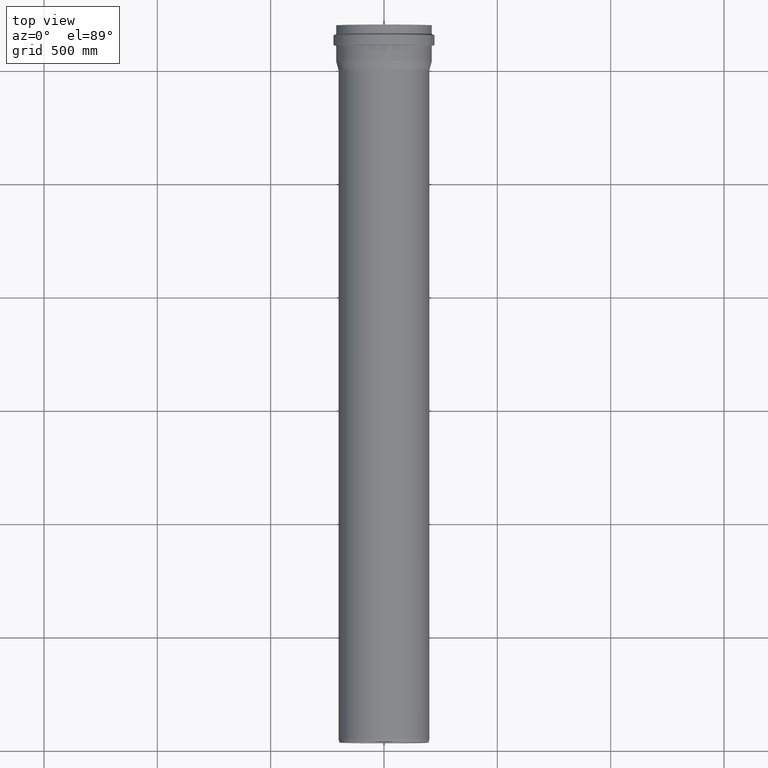
[diagram: clean part render]
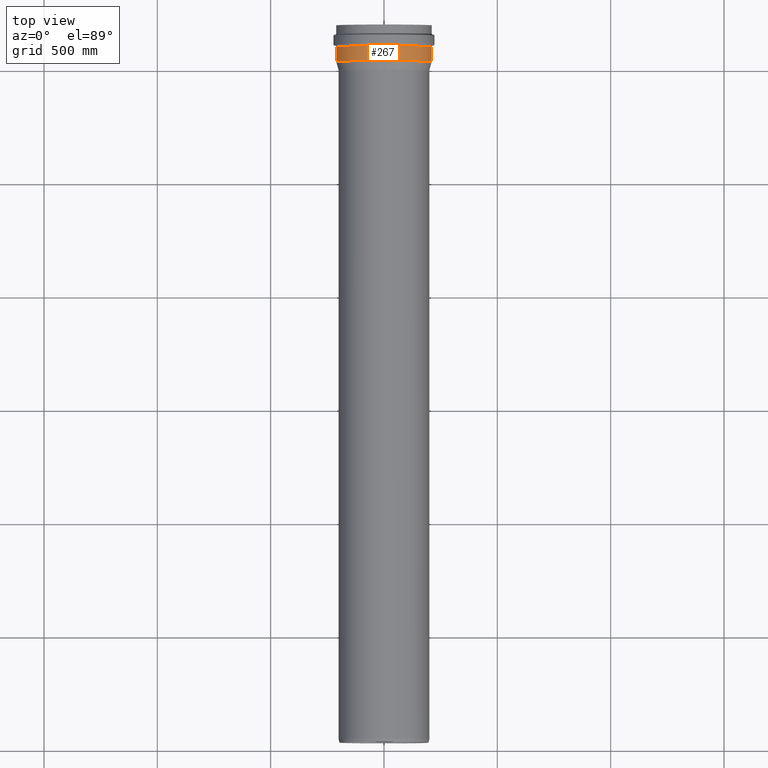
[diagram: same view with one face highlighted and labeled with its STEP entity id]
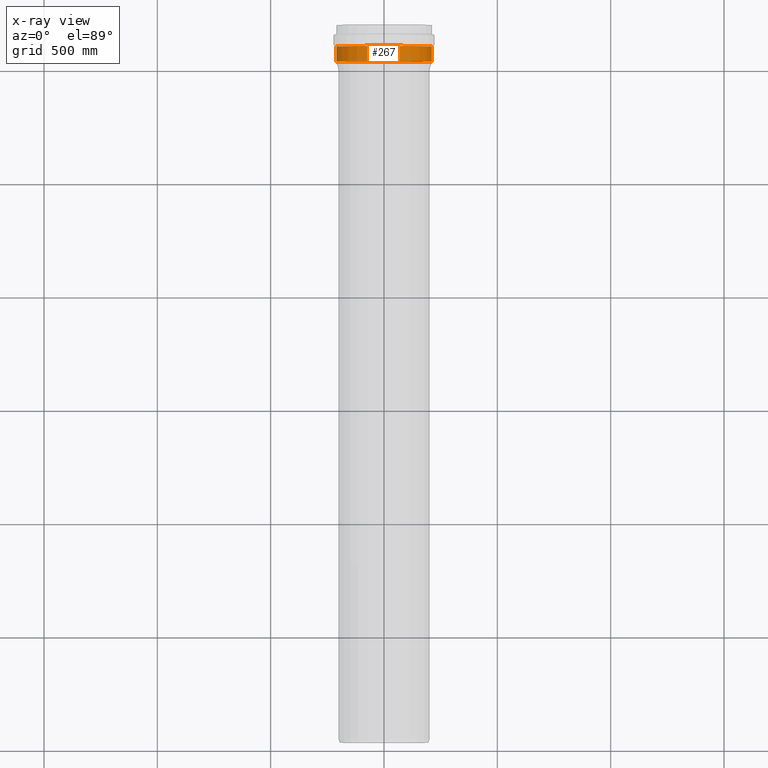
[diagram: x-ray of the same camera — body ghosted, the highlighted face saturated]
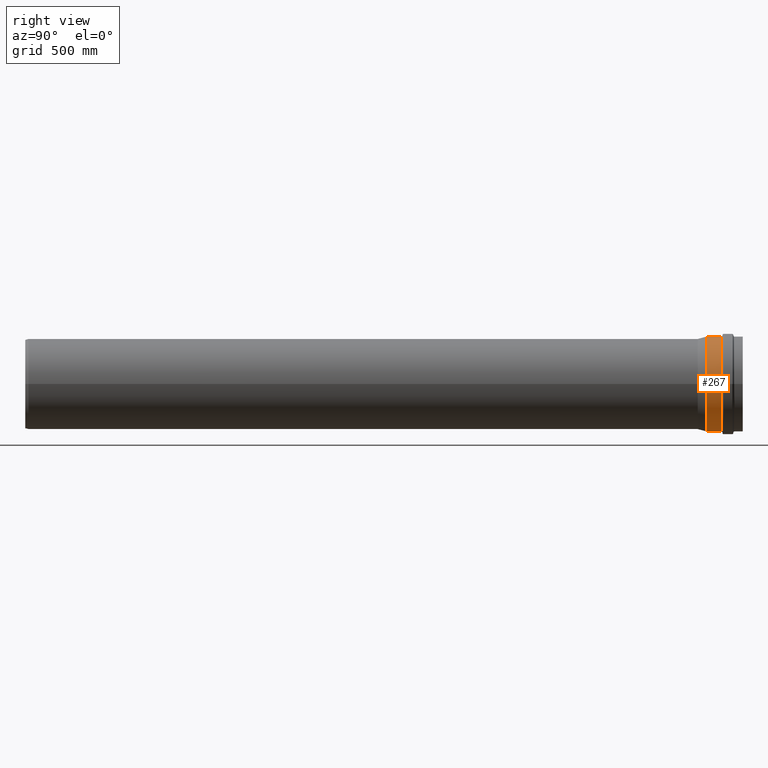
[diagram: same view with one face highlighted and labeled with its STEP entity id]
A machine part, top view. The second image highlights one B-rep face of the part: STEP entity #267.
The next image is the same camera in x-ray: the body ghosted, the highlighted face saturated — about 5% of this face is hidden behind the body in this view.
A second angle (right view) of the same face is appended — the face is thin or edge-on in the first view.
In plain terms, the highlighted cylindrical surface (bore or boss wall) has radius 210.7 mm, axis along (0, -1, 0).
Its self-contained STEP definition (entity closure, byte-faithful):
#17=CYLINDRICAL_SURFACE('',#297,210.7);
#34=FACE_BOUND('',#87,.T.);
#59=FACE_OUTER_BOUND('',#86,.T.);
#86=EDGE_LOOP('',(#211));
#87=EDGE_LOOP('',(#212));
#133=CIRCLE('',#294,210.7);
#135=CIRCLE('',#298,210.7);
#158=VERTEX_POINT('',#448);
#160=VERTEX_POINT('',#454);
#183=EDGE_CURVE('',#158,#158,#133,.T.);
#185=EDGE_CURVE('',#160,#160,#135,.T.);
#211=ORIENTED_EDGE('',*,*,#185,.F.);
#212=ORIENTED_EDGE('',*,*,#183,.F.);
#267=ADVANCED_FACE('',(#59,#34),#17,.T.);
#294=AXIS2_PLACEMENT_3D('',#449,#348,#349);
#297=AXIS2_PLACEMENT_3D('',#453,#354,#355);
#298=AXIS2_PLACEMENT_3D('',#455,#356,#357);
#348=DIRECTION('center_axis',(0.,1.,0.));
#349=DIRECTION('ref_axis',(-1.,0.,1.22464679914735E-16));
#354=DIRECTION('center_axis',(0.,-1.,0.));
#355=DIRECTION('ref_axis',(1.,0.,0.));
#356=DIRECTION('center_axis',(0.,-1.,0.));
#357=DIRECTION('ref_axis',(1.,0.,0.));
#448=CARTESIAN_POINT('',(210.7,104.372640446689,-5.16066161160695E-14));
#449=CARTESIAN_POINT('Origin',(0.,104.372640446689,0.));
#453=CARTESIAN_POINT('Origin',(0.,74.1170655332195,0.));
#454=CARTESIAN_POINT('',(210.7,39.2798347496625,0.));
#455=CARTESIAN_POINT('Origin',(0.,39.2798347496625,0.));